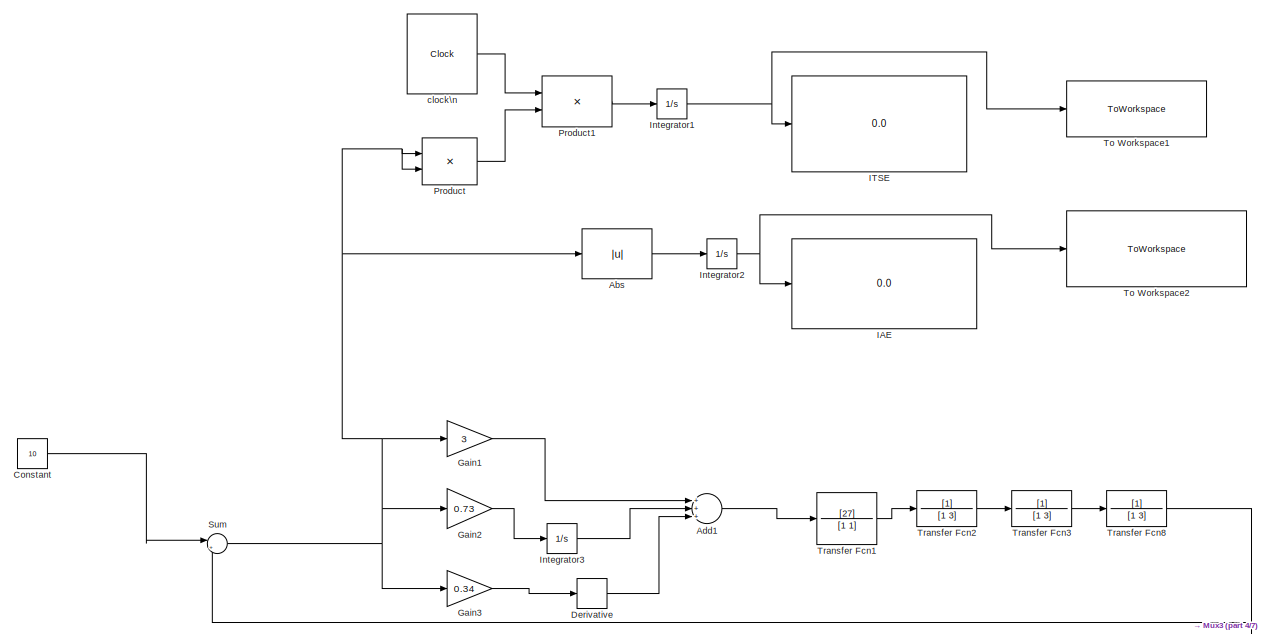
[diagram: root canvas - part 1/7, top left region]
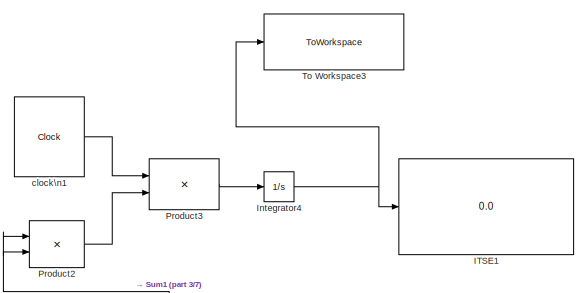
[diagram: root canvas - part 2/7, middle left region]
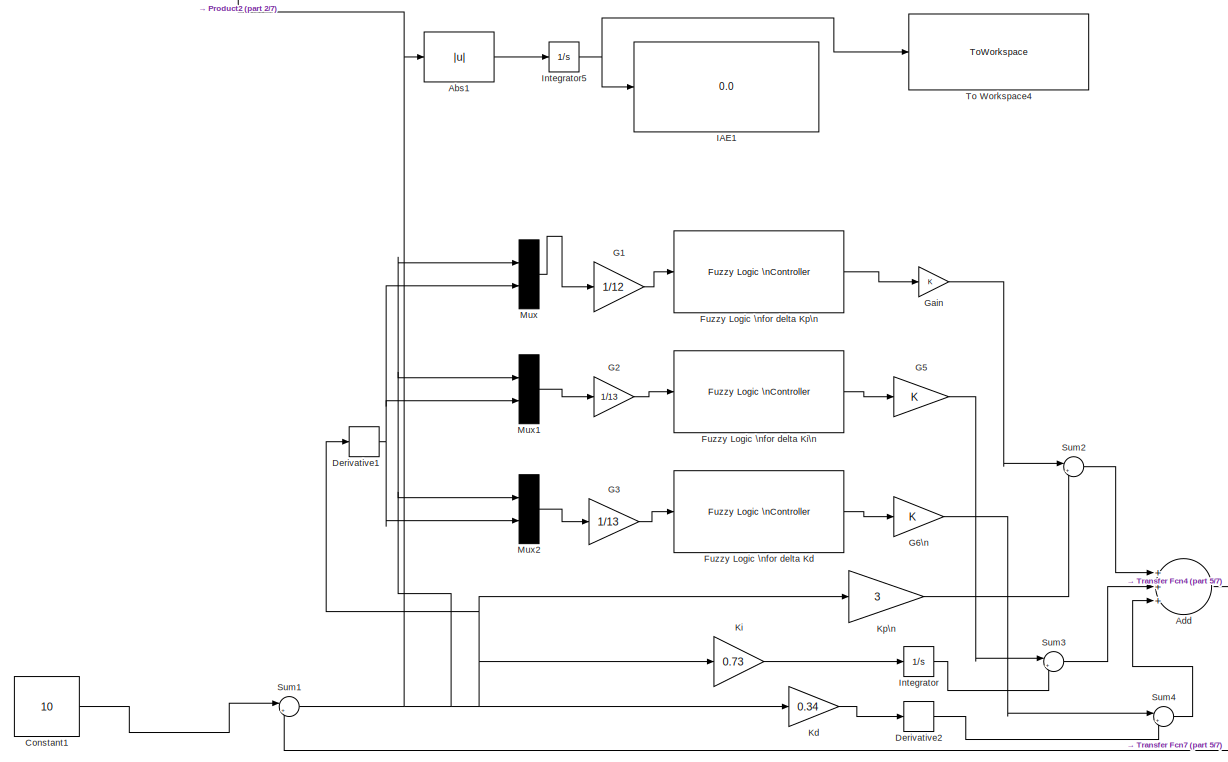
[diagram: root canvas - part 3/7, middle left region]
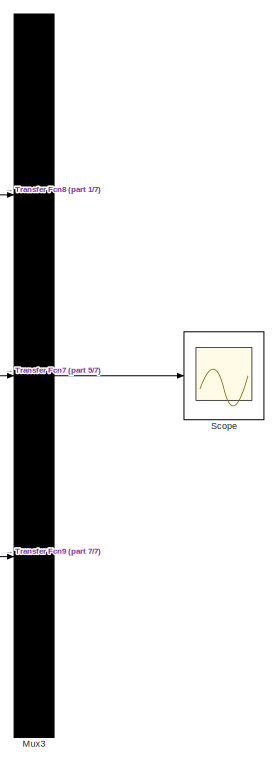
[diagram: root canvas - part 4/7, middle right region]
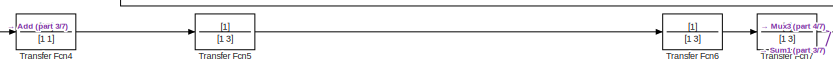
[diagram: root canvas - part 5/7, central region]
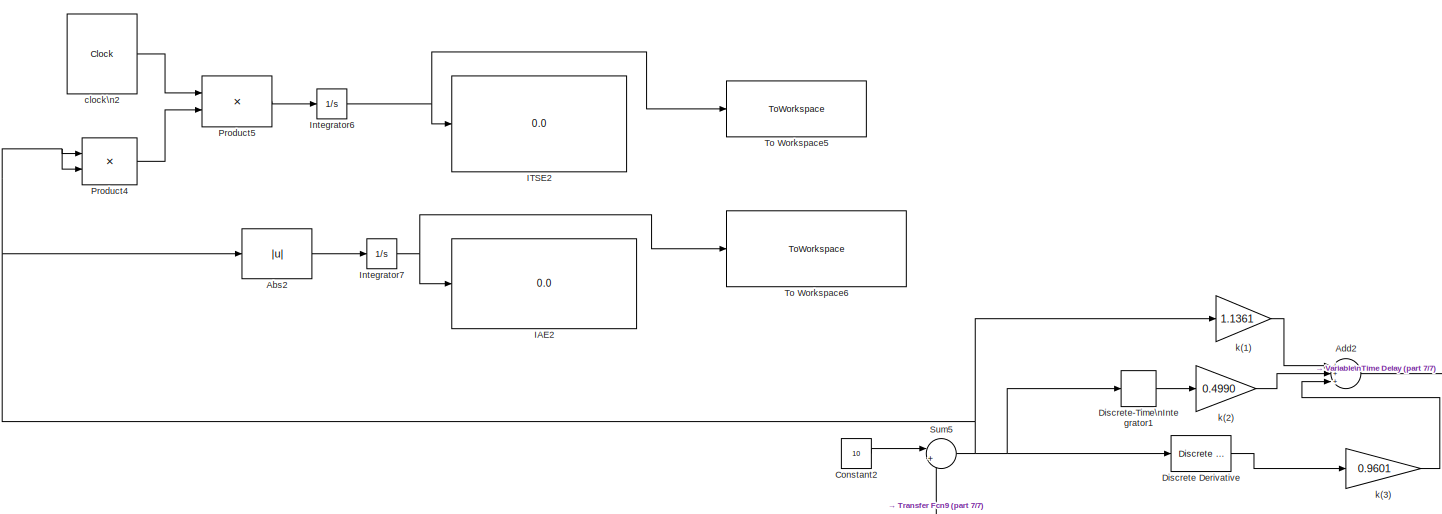
[diagram: root canvas - part 6/7, bottom left region]
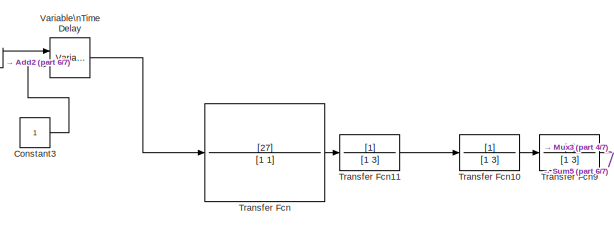
[diagram: root canvas - part 7/7, bottom center region]
MODEL fuzzy_no_load_no_delay
KIND model
BLOCK [Abs] Abs
  SID = 205
  SaturateOnIntegerOverflow = off
BLOCK [Abs] Abs1
  SID = 215
  SaturateOnIntegerOverflow = off
BLOCK [Abs] Abs2
  SID = 225
  SaturateOnIntegerOverflow = off
BLOCK [Sum] Add
  InputSameDT = off
  Inputs = +++
  OutDataTypeStr = Inherit: Inherit via internal rule
  Ports = [3, 1]
  SID = 128
  SaturateOnIntegerOverflow = off
BLOCK [Sum] Add1
  InputSameDT = off
  Inputs = +++
  OutDataTypeStr = Inherit: Inherit via internal rule
  Ports = [3, 1]
  SID = 166
  SaturateOnIntegerOverflow = off
BLOCK [Sum] Add2
  InputSameDT = off
  Inputs = +++
  OutDataTypeStr = Inherit: Inherit via internal rule
  Ports = [3, 1]
  SID = 179
  SaturateOnIntegerOverflow = off
BLOCK [Constant] Constant
  SID = 167
  Value = 10
BLOCK [Constant] Constant1
  SID = 130
  Value = 10
BLOCK [Constant] Constant2
  SID = 180
  Value = 10
BLOCK [Constant] Constant3
  SID = 181
BLOCK [Derivative] Derivative
  SID = 168
BLOCK [Derivative] Derivative1
  SID = 131
BLOCK [Derivative] Derivative2
  SID = 132
BLOCK [Reference] Discrete Derivative  REF=simulink/Discrete/Discrete Derivative
  DoSatur = off
  ICPrevScaledInput = 0.0
  InputProcessing = Elements as channels (sample based)
  LockScale = off
  OutDataType = fixdt(1, 16)
  OutDataTypeStr = Inherit: Inherit via internal rule
  OutMax = []
  OutMin = []
  OutScaling = 2^-10
  OutputDataTypeScalingMode = Inherit via internal rule
  Ports = [1, 1]
  RndMeth = Floor
  SID = 182
  SourceBlock = simulink/Discrete/Discrete Derivative
  SourceProductBaseCode = SL
  SourceProductName = Simulink
  SourceType = Discrete Derivative
  gainval = 1.0
BLOCK [DiscreteIntegrator] Discrete-Time\nIntegrator1
  ICPrevOutput = DiscIntNeverNeededParam
  ICPrevScaledInput = DiscIntNeverNeededParam
  InitialConditionSetting = Auto
  Ports = [1, 1]
  SID = 183
  SampleTime = -1
BLOCK [Reference] Fuzzy Logic \nfor delta Kd  REF=fuzblock/Fuzzy Logic \nController  (lib defined in mdl_858b3b3e7478)
  AggregatedOutputs = off
  DataType = double
  EmptyOutputFuzzySetMessage = warning
  FIS = 'fuzzy_delta_Kd.fis'
  FuzzifiedInputs = off
  NoRuleFiredMessage = warning
  OutOfRangeInputValueMessage = warning
  OutputSampleNumber = 101
  Ports = [1, 1]
  RuleFiringStrengths = off
  RuleOutputs = off
  SID = 133
  SimulateUsing = Interpreted execution
  SourceBlock = fuzblock/Fuzzy Logic \nController
  SourceProductBaseCode = FL
  SourceProductName = Fuzzy Logic Toolbox
  SourceType = Fuzzy Inference System
BLOCK [Reference] Fuzzy Logic \nfor delta Ki\n  REF=fuzblock/Fuzzy Logic \nController  (lib defined in mdl_858b3b3e7478)
  AggregatedOutputs = off
  DataType = double
  EmptyOutputFuzzySetMessage = warning
  FIS = 'fuzzy_delta_Ki.fis'
  FuzzifiedInputs = off
  NoRuleFiredMessage = warning
  OutOfRangeInputValueMessage = warning
  OutputSampleNumber = 101
  Ports = [1, 1]
  RuleFiringStrengths = off
  RuleOutputs = off
  SID = 134
  SimulateUsing = Interpreted execution
  SourceBlock = fuzblock/Fuzzy Logic \nController
  SourceProductBaseCode = FL
  SourceProductName = Fuzzy Logic Toolbox
  SourceType = Fuzzy Inference System
BLOCK [Reference] Fuzzy Logic \nfor delta Kp\n  REF=fuzblock/Fuzzy Logic \nController  (lib defined in mdl_858b3b3e7478)
  AggregatedOutputs = off
  DataType = double
  EmptyOutputFuzzySetMessage = warning
  FIS = 'fuzzy_delta_Kp.fis'
  FuzzifiedInputs = off
  NoRuleFiredMessage = warning
  OutOfRangeInputValueMessage = warning
  OutputSampleNumber = 101
  Ports = [1, 1]
  RuleFiringStrengths = off
  RuleOutputs = off
  SID = 135
  SimulateUsing = Interpreted execution
  SourceBlock = fuzblock/Fuzzy Logic \nController
  SourceProductBaseCode = FL
  SourceProductName = Fuzzy Logic Toolbox
  SourceType = Fuzzy Inference System
BLOCK [Gain] G1
  Gain = 1/12
  OutDataTypeStr = Inherit: Inherit via internal rule
  ParamDataTypeStr = Inherit: Inherit via internal rule
  SID = 136
  SaturateOnIntegerOverflow = off
BLOCK [Gain] G2
  Gain = 1/13
  OutDataTypeStr = Inherit: Inherit via internal rule
  ParamDataTypeStr = Inherit: Inherit via internal rule
  SID = 137
  SaturateOnIntegerOverflow = off
BLOCK [Gain] G3
  Gain = 1/13
  OutDataTypeStr = Inherit: Inherit via internal rule
  ParamDataTypeStr = Inherit: Inherit via internal rule
  SID = 138
  SaturateOnIntegerOverflow = off
BLOCK [Gain] G5
  OutDataTypeStr = Inherit: Inherit via internal rule
  ParamDataTypeStr = Inherit: Inherit via internal rule
  SID = 140
  SaturateOnIntegerOverflow = off
BLOCK [Gain] G6\n
  OutDataTypeStr = Inherit: Inherit via internal rule
  ParamDataTypeStr = Inherit: Inherit via internal rule
  SID = 141
  SaturateOnIntegerOverflow = off
BLOCK [Gain] Gain
  OutDataTypeStr = Inherit: Inherit via internal rule
  ParamDataTypeStr = Inherit: Inherit via internal rule
  SID = 164
  SaturateOnIntegerOverflow = off
BLOCK [Gain] Gain1
  Gain = 3
  OutDataTypeStr = Inherit: Inherit via internal rule
  ParamDataTypeStr = Inherit: Inherit via internal rule
  SID = 169
  SaturateOnIntegerOverflow = off
BLOCK [Gain] Gain2
  Gain = 0.73
  OutDataTypeStr = Inherit: Inherit via internal rule
  ParamDataTypeStr = Inherit: Inherit via internal rule
  SID = 170
  SaturateOnIntegerOverflow = off
BLOCK [Gain] Gain3
  Gain = 0.34
  OutDataTypeStr = Inherit: Inherit via internal rule
  ParamDataTypeStr = Inherit: Inherit via internal rule
  SID = 171
  SaturateOnIntegerOverflow = off
BLOCK [Display] IAE
  Decimation = 1
  Ports = [1]
  SID = 206
BLOCK [Display] IAE1
  Decimation = 1
  Ports = [1]
  SID = 216
BLOCK [Display] IAE2
  Decimation = 1
  Ports = [1]
  SID = 226
BLOCK [Display] ITSE
  Decimation = 1
  Ports = [1]
  SID = 207
BLOCK [Display] ITSE1
  Decimation = 1
  Ports = [1]
  SID = 217
BLOCK [Display] ITSE2
  Decimation = 1
  Ports = [1]
  SID = 227
BLOCK [Integrator] Integrator
  Ports = [1, 1]
  SID = 142
BLOCK [Integrator] Integrator1
  Ports = [1, 1]
  SID = 208
BLOCK [Integrator] Integrator2
  Ports = [1, 1]
  SID = 209
BLOCK [Integrator] Integrator3
  Ports = [1, 1]
  SID = 172
BLOCK [Integrator] Integrator4
  Ports = [1, 1]
  SID = 218
BLOCK [Integrator] Integrator5
  Ports = [1, 1]
  SID = 219
BLOCK [Integrator] Integrator6
  Ports = [1, 1]
  SID = 228
BLOCK [Integrator] Integrator7
  Ports = [1, 1]
  SID = 229
BLOCK [Gain] Kd
  Gain = 0.34
  OutDataTypeStr = Inherit: Inherit via internal rule
  ParamDataTypeStr = Inherit: Inherit via internal rule
  SID = 143
  SaturateOnIntegerOverflow = off
BLOCK [Gain] Ki
  Gain = 0.73
  OutDataTypeStr = Inherit: Inherit via internal rule
  ParamDataTypeStr = Inherit: Inherit via internal rule
  SID = 144
  SaturateOnIntegerOverflow = off
BLOCK [Gain] Kp\n
  Gain = 3
  OutDataTypeStr = Inherit: Inherit via internal rule
  ParamDataTypeStr = Inherit: Inherit via internal rule
  SID = 145
  SaturateOnIntegerOverflow = off
BLOCK [Mux] Mux
  DisplayOption = bar
  Inputs = 2
  Ports = [2, 1]
  SID = 146
BLOCK [Mux] Mux1
  DisplayOption = bar
  Inputs = 2
  Ports = [2, 1]
  SID = 147
BLOCK [Mux] Mux2
  DisplayOption = bar
  Inputs = 2
  Ports = [2, 1]
  SID = 148
BLOCK [Mux] Mux3
  DisplayOption = bar
  Inputs = 3
  Ports = [3, 1]
  SID = 199
BLOCK [Product] Product
  InputSameDT = off
  OutDataTypeStr = Inherit: Inherit via internal rule
  Ports = [2, 1]
  RndMeth = Floor
  SID = 210
  SaturateOnIntegerOverflow = off
BLOCK [Product] Product1
  InputSameDT = off
  OutDataTypeStr = Inherit: Inherit via internal rule
  Ports = [2, 1]
  RndMeth = Floor
  SID = 211
  SaturateOnIntegerOverflow = off
BLOCK [Product] Product2
  InputSameDT = off
  OutDataTypeStr = Inherit: Inherit via internal rule
  Ports = [2, 1]
  RndMeth = Floor
  SID = 220
  SaturateOnIntegerOverflow = off
BLOCK [Product] Product3
  InputSameDT = off
  OutDataTypeStr = Inherit: Inherit via internal rule
  Ports = [2, 1]
  RndMeth = Floor
  SID = 221
  SaturateOnIntegerOverflow = off
BLOCK [Product] Product4
  InputSameDT = off
  OutDataTypeStr = Inherit: Inherit via internal rule
  Ports = [2, 1]
  RndMeth = Floor
  SID = 230
  SaturateOnIntegerOverflow = off
BLOCK [Product] Product5
  InputSameDT = off
  OutDataTypeStr = Inherit: Inherit via internal rule
  Ports = [2, 1]
  RndMeth = Floor
  SID = 231
  SaturateOnIntegerOverflow = off
BLOCK [Scope] Scope
  Floating = off
  NumInputPorts = 1
  Ports = [1]
  SID = 200
  ScopeSpecificationString = Simulink.scopes.TimeScopeBlockCfg('CurrentConfiguration', extmgr.ConfigurationSet(extmgr.Configuration('Core','General UI',true),extmgr.Configuration('Core','Source UI',true),extmgr.Configuration('Sources','WiredSimulink',true),extmgr.Configuration('Visuals','Time Domain',true,'SerializedDisplays',{struct('MinYLimReal','-1.59415','MaxYLimReal','14.34737','YLabelReal','','MinYLimMag','0.00000','Max...<+1445ch>
BLOCK [Sum] Sum
  IconShape = round
  InputSameDT = off
  Inputs = |+-
  OutDataTypeStr = Inherit: Inherit via internal rule
  Ports = [2, 1]
  SID = 174
  SaturateOnIntegerOverflow = off
BLOCK [Sum] Sum1
  IconShape = round
  InputSameDT = off
  Inputs = |+-
  OutDataTypeStr = Inherit: Inherit via internal rule
  Ports = [2, 1]
  SID = 151
  SaturateOnIntegerOverflow = off
BLOCK [Sum] Sum2
  IconShape = round
  InputSameDT = off
  Inputs = |++
  OutDataTypeStr = Inherit: Inherit via internal rule
  Ports = [2, 1]
  SID = 152
  SaturateOnIntegerOverflow = off
BLOCK [Sum] Sum3
  IconShape = round
  InputSameDT = off
  Inputs = |++
  OutDataTypeStr = Inherit: Inherit via internal rule
  Ports = [2, 1]
  SID = 153
  SaturateOnIntegerOverflow = off
BLOCK [Sum] Sum4
  IconShape = round
  InputSameDT = off
  Inputs = |++
  OutDataTypeStr = Inherit: Inherit via internal rule
  Ports = [2, 1]
  SID = 154
  SaturateOnIntegerOverflow = off
BLOCK [Sum] Sum5
  IconShape = round
  InputSameDT = off
  Inputs = |+-
  OutDataTypeStr = Inherit: Inherit via internal rule
  Ports = [2, 1]
  SID = 185
  SaturateOnIntegerOverflow = off
BLOCK [ToWorkspace] To Workspace1
  FixptAsFi = on
  MaxDataPoints = inf
  Ports = [1]
  SID = 212
  SampleTime = -1
  VariableName = ITSE1
BLOCK [ToWorkspace] To Workspace2
  FixptAsFi = on
  MaxDataPoints = inf
  Ports = [1]
  SID = 213
  SampleTime = -1
  VariableName = IAE1
BLOCK [ToWorkspace] To Workspace3
  FixptAsFi = on
  MaxDataPoints = inf
  Ports = [1]
  SID = 222
  SampleTime = -1
  VariableName = ITSE2
BLOCK [ToWorkspace] To Workspace4
  FixptAsFi = on
  MaxDataPoints = inf
  Ports = [1]
  SID = 223
  SampleTime = -1
  VariableName = IAE2
BLOCK [ToWorkspace] To Workspace5
  FixptAsFi = on
  MaxDataPoints = inf
  Ports = [1]
  SID = 232
  SampleTime = -1
  VariableName = ITSE3
BLOCK [ToWorkspace] To Workspace6
  FixptAsFi = on
  MaxDataPoints = inf
  Ports = [1]
  SID = 233
  SampleTime = -1
  VariableName = IAE3
BLOCK [TransferFcn] Transfer Fcn
  Denominator = [1 1]
  Numerator = [27]
  SID = 187
BLOCK [TransferFcn] Transfer Fcn1
  Denominator = [1 1]
  Numerator = [27]
  SID = 175
BLOCK [TransferFcn] Transfer Fcn10
  Denominator = [1 3]
  SID = 189
BLOCK [TransferFcn] Transfer Fcn11
  Denominator = [1 3]
  SID = 190
BLOCK [TransferFcn] Transfer Fcn2
  Denominator = [1 3]
  SID = 176
BLOCK [TransferFcn] Transfer Fcn3
  Denominator = [1 3]
  SID = 177
BLOCK [TransferFcn] Transfer Fcn4
  Denominator = [1 1]
  Numerator = [27]
  SID = 156
BLOCK [TransferFcn] Transfer Fcn5
  Denominator = [1 3]
  SID = 157
BLOCK [TransferFcn] Transfer Fcn6
  Denominator = [1 3]
  SID = 158
BLOCK [TransferFcn] Transfer Fcn7
  Denominator = [1 3]
  SID = 159
BLOCK [TransferFcn] Transfer Fcn8
  Denominator = [1 3]
  SID = 178
BLOCK [TransferFcn] Transfer Fcn9
  Denominator = [1 3]
  SID = 188
BLOCK [VariableTransportDelay] Variable\nTime Delay
  MaximumDelay = 10
  Ports = [2, 1]
  SID = 191
BLOCK [Clock] clock\n
  SID = 214
BLOCK [Clock] clock\n1
  SID = 224
BLOCK [Clock] clock\n2
  SID = 234
BLOCK [Gain] k(1)
  Gain = 1.1361
  OutDataTypeStr = Inherit: Inherit via internal rule
  ParamDataTypeStr = Inherit: Inherit via internal rule
  SID = 192
  SaturateOnIntegerOverflow = off
BLOCK [Gain] k(2)
  Gain = 0.4990
  OutDataTypeStr = Inherit: Inherit via internal rule
  ParamDataTypeStr = Inherit: Inherit via internal rule
  SID = 193
  SaturateOnIntegerOverflow = off
BLOCK [Gain] k(3)
  Gain = 0.9601
  OutDataTypeStr = Inherit: Inherit via internal rule
  ParamDataTypeStr = Inherit: Inherit via internal rule
  SID = 194
  SaturateOnIntegerOverflow = off
LINE Abs1:1 -> Integrator5:1
LINE Abs2:1 -> Integrator7:1
LINE Abs:1 -> Integrator2:1
LINE Add1:1 -> Transfer Fcn1:1
LINE Add2:1 -> Variable\nTime Delay:1
LINE Add:1 -> Transfer Fcn4:1
LINE Constant1:1 -> Sum1:1
LINE Constant2:1 -> Sum5:1
LINE Constant3:1 -> Variable\nTime Delay:2
LINE Constant:1 -> Sum:1
NET Derivative1:1 -> Mux1:2, Mux2:2, Mux:2
LINE Derivative2:1 -> Sum4:2
LINE Derivative:1 -> Add1:3
LINE Discrete Derivative:1 -> k(3):1
LINE Discrete-Time\nIntegrator1:1 -> k(2):1
LINE Fuzzy Logic \nfor delta Kd:1 -> G6\n:1
LINE Fuzzy Logic \nfor delta Ki\n:1 -> G5:1
LINE Fuzzy Logic \nfor delta Kp\n:1 -> Gain:1
LINE G1:1 -> Fuzzy Logic \nfor delta Kp\n:1
LINE G2:1 -> Fuzzy Logic \nfor delta Ki\n:1
LINE G3:1 -> Fuzzy Logic \nfor delta Kd:1
LINE G5:1 -> Sum3:1
LINE G6\n:1 -> Sum4:1
LINE Gain1:1 -> Add1:1
LINE Gain2:1 -> Integrator3:1
LINE Gain3:1 -> Derivative:1
LINE Gain:1 -> Sum2:1
NET Integrator1:1 -> ITSE:1, To Workspace1:1
NET Integrator2:1 -> IAE:1, To Workspace2:1
LINE Integrator3:1 -> Add1:2
NET Integrator4:1 -> ITSE1:1, To Workspace3:1
NET Integrator5:1 -> IAE1:1, To Workspace4:1
NET Integrator6:1 -> ITSE2:1, To Workspace5:1
NET Integrator7:1 -> IAE2:1, To Workspace6:1
LINE Integrator:1 -> Sum3:2
LINE Kd:1 -> Derivative2:1
LINE Ki:1 -> Integrator:1
LINE Kp\n:1 -> Sum2:2
LINE Mux1:1 -> G2:1
LINE Mux2:1 -> G3:1
LINE Mux3:1 -> Scope:1
LINE Mux:1 -> G1:1
LINE Product1:1 -> Integrator1:1
LINE Product2:1 -> Product3:2
LINE Product3:1 -> Integrator4:1
LINE Product4:1 -> Product5:2
LINE Product5:1 -> Integrator6:1
LINE Product:1 -> Product1:2
NET Sum1:1 -> Abs1:1, Derivative1:1, Kd:1, Ki:1, Kp\n:1, Mux1:1, Mux2:1, Mux:1, Product2:1, Product2:2
LINE Sum2:1 -> Add:1
LINE Sum3:1 -> Add:2
LINE Sum4:1 -> Add:3
NET Sum5:1 -> Abs2:1, Discrete Derivative:1, Discrete-Time\nIntegrator1:1, Product4:1, Product4:2, k(1):1
NET Sum:1 -> Abs:1, Gain1:1, Gain2:1, Gain3:1, Product:1, Product:2
LINE Transfer Fcn10:1 -> Transfer Fcn9:1
LINE Transfer Fcn11:1 -> Transfer Fcn10:1
LINE Transfer Fcn1:1 -> Transfer Fcn2:1
LINE Transfer Fcn2:1 -> Transfer Fcn3:1
LINE Transfer Fcn3:1 -> Transfer Fcn8:1
LINE Transfer Fcn4:1 -> Transfer Fcn5:1
LINE Transfer Fcn5:1 -> Transfer Fcn6:1
LINE Transfer Fcn6:1 -> Transfer Fcn7:1
NET Transfer Fcn7:1 -> Mux3:2, Sum1:2
NET Transfer Fcn8:1 -> Mux3:1, Sum:2
NET Transfer Fcn9:1 -> Mux3:3, Sum5:2
LINE Transfer Fcn:1 -> Transfer Fcn11:1
LINE Variable\nTime Delay:1 -> Transfer Fcn:1
LINE clock\n1:1 -> Product3:1
LINE clock\n2:1 -> Product5:1
LINE clock\n:1 -> Product1:1
LINE k(1):1 -> Add2:1
LINE k(2):1 -> Add2:2
LINE k(3):1 -> Add2:3
note: NET lines group one-source signal fan-out (src -> all destinations, sorted); 1:1 wires keep LINE
